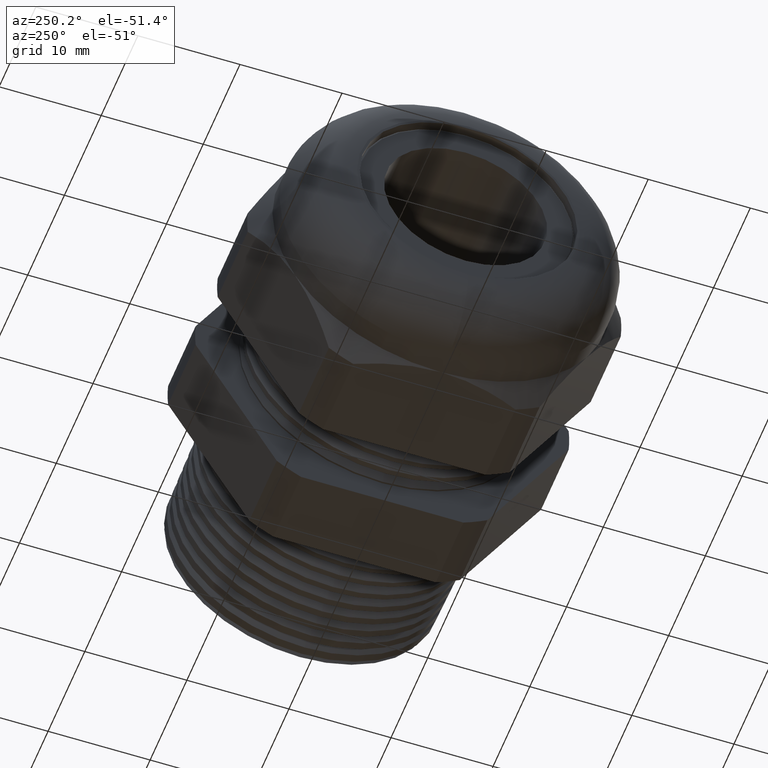
[diagram: clean part render]
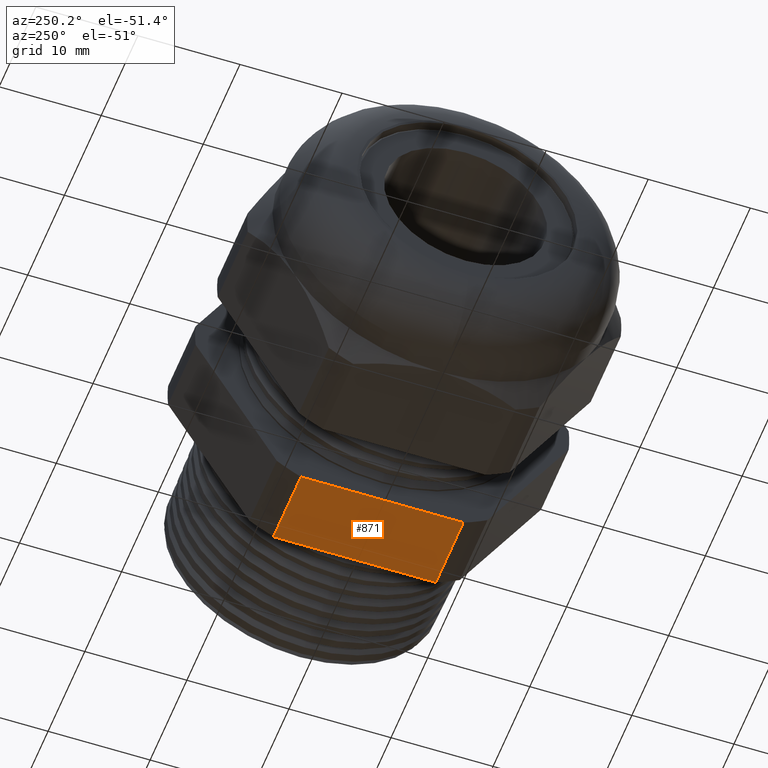
[diagram: same view with one face highlighted and labeled with its STEP entity id]
A machine part, auxiliary view. The second image highlights one B-rep face of the part: STEP entity #871.
In plain terms, the highlighted planar face has unit normal (0, 0, -1).
Its self-contained STEP definition (entity closure, byte-faithful):
#276 = VERTEX_POINT ( 'NONE', #1764 ) ;
#329 = VERTEX_POINT ( 'NONE', #1837 ) ;
#337 = EDGE_CURVE ( 'NONE', #276, #329, #1888, .T. ) ;
#867 = EDGE_CURVE ( 'NONE', #329, #868, #2808, .T. ) ;
#868 = VERTEX_POINT ( 'NONE', #2867 ) ;
#871 = ADVANCED_FACE ( 'NONE', ( #2866 ), #2860, .T. ) ;
#872 = EDGE_LOOP ( 'NONE', ( #873, #874, #875, #931 ) ) ;
#873 = ORIENTED_EDGE ( 'NONE', *, *, #867, .F. ) ;
#874 = ORIENTED_EDGE ( 'NONE', *, *, #337, .F. ) ;
#875 = ORIENTED_EDGE ( 'NONE', *, *, #876, .T. ) ;
#876 = EDGE_CURVE ( 'NONE', #276, #877, #2855, .T. ) ;
#877 = VERTEX_POINT ( 'NONE', #2851 ) ;
#931 = ORIENTED_EDGE ( 'NONE', *, *, #932, .F. ) ;
#932 = EDGE_CURVE ( 'NONE', #868, #877, #2949, .T. ) ;
#1764 = CARTESIAN_POINT ( 'NONE',  ( -0.3100000000000000000, -0.3131489262315936800, -0.6500000000000000200 ) ) ;
#1837 = CARTESIAN_POINT ( 'NONE',  ( -0.3100000000000000000, 0.3131489262315935700, -0.6499999999999999100 ) ) ;
#1885 = DIRECTION ( 'NONE',  ( 0.0000000000000000000, 1.000000000000000000, 0.0000000000000000000 ) ) ;
#1886 = VECTOR ( 'NONE', #1885, 39.37007874015748100 ) ;
#1887 = CARTESIAN_POINT ( 'NONE',  ( -0.3100000000000000000, 1.300000000000000000, -0.6500000000000000200 ) ) ;
#1888 = LINE ( 'NONE', #1887, #1886 ) ;
#2808 = LINE ( 'NONE', #2870, #2869 ) ;
#2851 = CARTESIAN_POINT ( 'NONE',  ( -0.6052755905511810800, -0.3131489262315936800, -0.6500000000000000200 ) ) ;
#2852 = DIRECTION ( 'NONE',  ( -1.000000000000000000, 0.0000000000000000000, 0.0000000000000000000 ) ) ;
#2853 = VECTOR ( 'NONE', #2852, 39.37007874015748100 ) ;
#2854 = CARTESIAN_POINT ( 'NONE',  ( 0.2800000000000000300, -0.3131489262315936800, -0.6500000000000000200 ) ) ;
#2855 = LINE ( 'NONE', #2854, #2853 ) ;
#2856 = DIRECTION ( 'NONE',  ( -1.000000000000000000, 0.0000000000000000000, 0.0000000000000000000 ) ) ;
#2857 = DIRECTION ( 'NONE',  ( 0.0000000000000000000, 0.0000000000000000000, -1.000000000000000000 ) ) ;
#2858 = CARTESIAN_POINT ( 'NONE',  ( 0.2800000000000000300, 0.3131489262315936800, -0.6500000000000000200 ) ) ;
#2859 = AXIS2_PLACEMENT_3D ( 'NONE', #2858, #2857, #2856 ) ;
#2860 = PLANE ( 'NONE',  #2859 ) ;
#2866 = FACE_OUTER_BOUND ( 'NONE', #872, .T. ) ;
#2867 = CARTESIAN_POINT ( 'NONE',  ( -0.6052755905511810800, 0.3131489262315935700, -0.6499999999999999100 ) ) ;
#2868 = DIRECTION ( 'NONE',  ( -1.000000000000000000, 0.0000000000000000000, 0.0000000000000000000 ) ) ;
#2869 = VECTOR ( 'NONE', #2868, 39.37007874015748100 ) ;
#2870 = CARTESIAN_POINT ( 'NONE',  ( 0.2800000000000000300, 0.3131489262315935700, -0.6499999999999999100 ) ) ;
#2942 = DIRECTION ( 'NONE',  ( 0.0000000000000000000, -1.000000000000000000, 0.0000000000000000000 ) ) ;
#2943 = VECTOR ( 'NONE', #2942, 39.37007874015748100 ) ;
#2944 = CARTESIAN_POINT ( 'NONE',  ( -0.6052755905511810800, 1.299999999999999800, -0.6500000000000000200 ) ) ;
#2949 = LINE ( 'NONE', #2944, #2943 ) ;